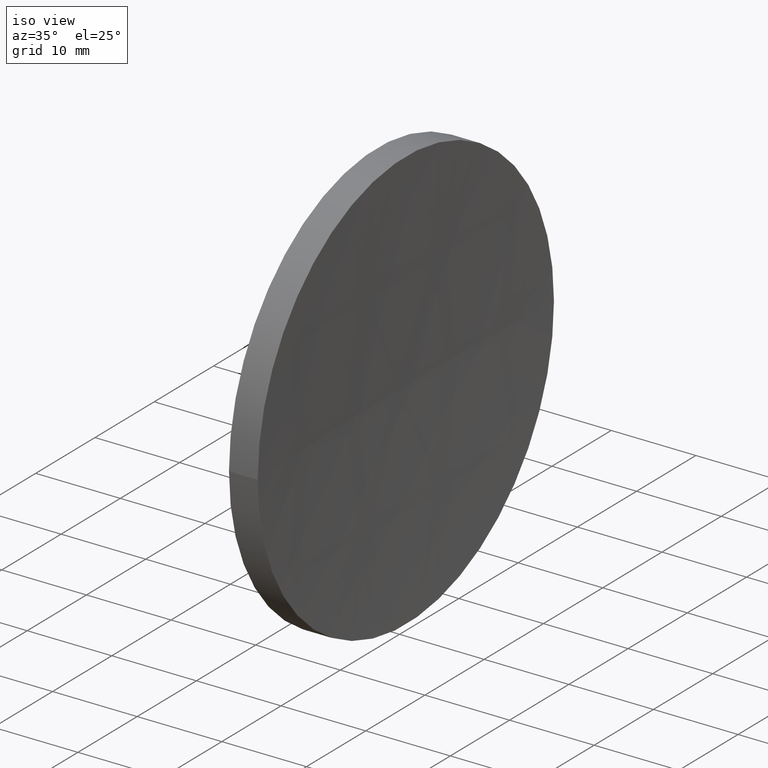
[diagram: clean part render]
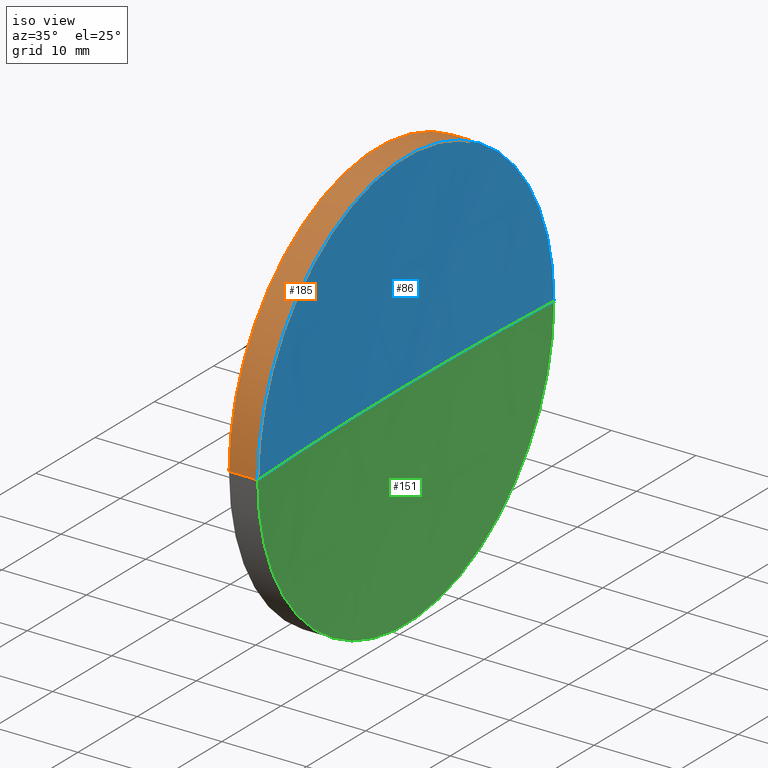
[diagram: same view with three faces highlighted in distinct colors, each labeled with its STEP entity id]
A machine part, iso view with three faces highlighted in distinct colors.
Their STEP definitions:

[orange] entity #185 — the highlighted cylindrical surface (partial cylindrical patch) has radius 25 mm, axis along (-1, -0, -0).
#3 = DIRECTION ( 'NONE',  ( 1.110223024625155600E-015, -1.000000000000000000, 0.0000000000000000000 ) ) ;
#15 = EDGE_CURVE ( 'NONE', #16, #27, #81, .T. ) ;
#16 = VERTEX_POINT ( 'NONE', #102 ) ;
#27 = VERTEX_POINT ( 'NONE', #28 ) ;
#28 = CARTESIAN_POINT ( 'NONE',  ( 247.0464934087960100, 155.4336809418806200, 3.061616997868381100E-015 ) ) ;
#29 = DIRECTION ( 'NONE',  ( 1.110223024625158500E-015, -1.000000000000000000, 0.0000000000000000000 ) ) ;
#45 = EDGE_CURVE ( 'NONE', #135, #79, #116, .T. ) ;
#47 = CARTESIAN_POINT ( 'NONE',  ( 250.4363445055402100, 155.4336809418801400, 0.0000000000000000000 ) ) ;
#51 = LINE ( 'NONE', #61, #98 ) ;
#53 = ORIENTED_EDGE ( 'NONE', *, *, #191, .T. ) ;
#54 = AXIS2_PLACEMENT_3D ( 'NONE', #101, #143, #29 ) ;
#61 = CARTESIAN_POINT ( 'NONE',  ( 231.8889825959263100, 155.4336809418806800, 3.061616997868385800E-015 ) ) ;
#73 = CARTESIAN_POINT ( 'NONE',  ( 250.4363445055402100, 105.4336809418803700, -3.061616997868324700E-015 ) ) ;
#76 = EDGE_CURVE ( 'NONE', #135, #16, #111, .T. ) ;
#77 = DIRECTION ( 'NONE',  ( 0.0000000000000000000, -1.000000000000000000, 0.0000000000000000000 ) ) ;
#79 = VERTEX_POINT ( 'NONE', #47 ) ;
#81 = CIRCLE ( 'NONE', #54, 24.99999999999995400 ) ;
#83 = AXIS2_PLACEMENT_3D ( 'NONE', #158, #110, #3 ) ;
#98 = VECTOR ( 'NONE', #136, 1000.000000000000000 ) ;
#101 = CARTESIAN_POINT ( 'NONE',  ( 247.0464934087960400, 130.4336809418806500, 0.0000000000000000000 ) ) ;
#102 = CARTESIAN_POINT ( 'NONE',  ( 247.0464934087960700, 105.4336809418807000, 0.0000000000000000000 ) ) ;
#105 = ORIENTED_EDGE ( 'NONE', *, *, #45, .T. ) ;
#107 = AXIS2_PLACEMENT_3D ( 'NONE', #137, #163, #77 ) ;
#110 = DIRECTION ( 'NONE',  ( -1.000000000000000000, -6.937607244762875000E-016, -0.0000000000000000000 ) ) ;
#111 = LINE ( 'NONE', #160, #122 ) ;
#116 = CIRCLE ( 'NONE', #107, 25.00000000000006400 ) ;
#119 = DIRECTION ( 'NONE',  ( -1.000000000000000000, -6.937607244762875000E-016, -0.0000000000000000000 ) ) ;
#122 = VECTOR ( 'NONE', #119, 1000.000000000000000 ) ;
#127 = CYLINDRICAL_SURFACE ( 'NONE', #83, 25.00000000000002100 ) ;
#135 = VERTEX_POINT ( 'NONE', #73 ) ;
#136 = DIRECTION ( 'NONE',  ( -1.000000000000000000, -6.937607244762875000E-016, -0.0000000000000000000 ) ) ;
#137 = CARTESIAN_POINT ( 'NONE',  ( 250.4363445055402600, 130.4336809418806500, 0.0000000000000000000 ) ) ;
#142 = ORIENTED_EDGE ( 'NONE', *, *, #15, .F. ) ;
#143 = DIRECTION ( 'NONE',  ( -1.000000000000000000, -6.937607244762875000E-016, -0.0000000000000000000 ) ) ;
#153 = EDGE_LOOP ( 'NONE', ( #105, #53, #142, #188 ) ) ;
#158 = CARTESIAN_POINT ( 'NONE',  ( 231.8889825959263400, 130.4336809418806500, 0.0000000000000000000 ) ) ;
#160 = CARTESIAN_POINT ( 'NONE',  ( 231.8889825959263600, 105.4336809418806200, 0.0000000000000000000 ) ) ;
#163 = DIRECTION ( 'NONE',  ( -1.000000000000000000, -6.937607244762875000E-016, -0.0000000000000000000 ) ) ;
#175 = FACE_OUTER_BOUND ( 'NONE', #153, .T. ) ;
#185 = ADVANCED_FACE ( 'NONE', ( #175 ), #127, .T. ) ;
#188 = ORIENTED_EDGE ( 'NONE', *, *, #76, .F. ) ;
#191 = EDGE_CURVE ( 'NONE', #79, #27, #51, .T. ) ;

[blue] entity #86 — the highlighted spherical surface has radius 478 mm.
#2 = CARTESIAN_POINT ( 'NONE',  ( 727.7821311214902400, 130.4336809418802000, 0.0000000000000000000 ) ) ;
#5 = CARTESIAN_POINT ( 'NONE',  ( 727.7821311214902400, 130.4336809418802000, 0.0000000000000000000 ) ) ;
#7 = CIRCLE ( 'NONE', #33, 478.0000000000001100 ) ;
#18 = EDGE_CURVE ( 'NONE', #79, #170, #30, .T. ) ;
#30 = CIRCLE ( 'NONE', #64, 478.0000000000000000 ) ;
#33 = AXIS2_PLACEMENT_3D ( 'NONE', #5, #93, #87 ) ;
#39 = ORIENTED_EDGE ( 'NONE', *, *, #176, .T. ) ;
#45 = EDGE_CURVE ( 'NONE', #135, #79, #116, .T. ) ;
#47 = CARTESIAN_POINT ( 'NONE',  ( 250.4363445055402100, 155.4336809418801400, 0.0000000000000000000 ) ) ;
#58 = DIRECTION ( 'NONE',  ( 0.0000000000000000000, 0.0000000000000000000, -1.000000000000000000 ) ) ;
#59 = ORIENTED_EDGE ( 'NONE', *, *, #45, .F. ) ;
#64 = AXIS2_PLACEMENT_3D ( 'NONE', #2, #106, #118 ) ;
#73 = CARTESIAN_POINT ( 'NONE',  ( 250.4363445055402100, 105.4336809418803700, -3.061616997868324700E-015 ) ) ;
#75 = DIRECTION ( 'NONE',  ( -6.967926932793868200E-016, 1.000000000000000000, 0.0000000000000000000 ) ) ;
#77 = DIRECTION ( 'NONE',  ( 0.0000000000000000000, -1.000000000000000000, 0.0000000000000000000 ) ) ;
#79 = VERTEX_POINT ( 'NONE', #47 ) ;
#86 = ADVANCED_FACE ( 'NONE', ( #104 ), #155, .F. ) ;
#87 = DIRECTION ( 'NONE',  ( 0.0000000000000000000, 1.000000000000000000, 1.224646799147353000E-016 ) ) ;
#93 = DIRECTION ( 'NONE',  ( -8.496118506040342700E-032, 1.224646799147353200E-016, -1.000000000000000000 ) ) ;
#104 = FACE_OUTER_BOUND ( 'NONE', #156, .T. ) ;
#106 = DIRECTION ( 'NONE',  ( 0.0000000000000000000, -0.0000000000000000000, 1.000000000000000000 ) ) ;
#107 = AXIS2_PLACEMENT_3D ( 'NONE', #137, #163, #77 ) ;
#114 = ORIENTED_EDGE ( 'NONE', *, *, #18, .F. ) ;
#116 = CIRCLE ( 'NONE', #107, 25.00000000000006400 ) ;
#118 = DIRECTION ( 'NONE',  ( 1.000000000000000000, 0.0000000000000000000, 0.0000000000000000000 ) ) ;
#123 = CARTESIAN_POINT ( 'NONE',  ( 249.7821311214901800, 130.4336809418799100, 0.0000000000000000000 ) ) ;
#135 = VERTEX_POINT ( 'NONE', #73 ) ;
#137 = CARTESIAN_POINT ( 'NONE',  ( 250.4363445055402600, 130.4336809418806500, 0.0000000000000000000 ) ) ;
#150 = CARTESIAN_POINT ( 'NONE',  ( 727.7821311214902400, 130.4336809418802000, 0.0000000000000000000 ) ) ;
#155 = SPHERICAL_SURFACE ( 'NONE', #171, 478.0000000000001100 ) ;
#156 = EDGE_LOOP ( 'NONE', ( #59, #39, #114 ) ) ;
#163 = DIRECTION ( 'NONE',  ( -1.000000000000000000, -6.937607244762875000E-016, -0.0000000000000000000 ) ) ;
#170 = VERTEX_POINT ( 'NONE', #123 ) ;
#171 = AXIS2_PLACEMENT_3D ( 'NONE', #150, #58, #75 ) ;
#176 = EDGE_CURVE ( 'NONE', #135, #170, #7, .T. ) ;

[green] entity #151 — the highlighted spherical surface has radius 478 mm.
#2 = CARTESIAN_POINT ( 'NONE',  ( 727.7821311214902400, 130.4336809418802000, 0.0000000000000000000 ) ) ;
#5 = CARTESIAN_POINT ( 'NONE',  ( 727.7821311214902400, 130.4336809418802000, 0.0000000000000000000 ) ) ;
#7 = CIRCLE ( 'NONE', #33, 478.0000000000001100 ) ;
#10 = CIRCLE ( 'NONE', #72, 25.00000000000006400 ) ;
#18 = EDGE_CURVE ( 'NONE', #79, #170, #30, .T. ) ;
#30 = CIRCLE ( 'NONE', #64, 478.0000000000000000 ) ;
#32 = CARTESIAN_POINT ( 'NONE',  ( 250.4363445055402600, 130.4336809418806500, 0.0000000000000000000 ) ) ;
#33 = AXIS2_PLACEMENT_3D ( 'NONE', #5, #93, #87 ) ;
#40 = FACE_OUTER_BOUND ( 'NONE', #99, .T. ) ;
#41 = AXIS2_PLACEMENT_3D ( 'NONE', #181, #148, #46 ) ;
#42 = SPHERICAL_SURFACE ( 'NONE', #41, 478.0000000000001100 ) ;
#43 = EDGE_CURVE ( 'NONE', #79, #135, #10, .T. ) ;
#46 = DIRECTION ( 'NONE',  ( -6.967926932793868200E-016, 1.000000000000000000, 0.0000000000000000000 ) ) ;
#47 = CARTESIAN_POINT ( 'NONE',  ( 250.4363445055402100, 155.4336809418801400, 0.0000000000000000000 ) ) ;
#64 = AXIS2_PLACEMENT_3D ( 'NONE', #2, #106, #118 ) ;
#72 = AXIS2_PLACEMENT_3D ( 'NONE', #32, #133, #131 ) ;
#73 = CARTESIAN_POINT ( 'NONE',  ( 250.4363445055402100, 105.4336809418803700, -3.061616997868324700E-015 ) ) ;
#79 = VERTEX_POINT ( 'NONE', #47 ) ;
#87 = DIRECTION ( 'NONE',  ( 0.0000000000000000000, 1.000000000000000000, 1.224646799147353000E-016 ) ) ;
#93 = DIRECTION ( 'NONE',  ( -8.496118506040342700E-032, 1.224646799147353200E-016, -1.000000000000000000 ) ) ;
#99 = EDGE_LOOP ( 'NONE', ( #130, #172, #112 ) ) ;
#106 = DIRECTION ( 'NONE',  ( 0.0000000000000000000, -0.0000000000000000000, 1.000000000000000000 ) ) ;
#112 = ORIENTED_EDGE ( 'NONE', *, *, #18, .T. ) ;
#118 = DIRECTION ( 'NONE',  ( 1.000000000000000000, 0.0000000000000000000, 0.0000000000000000000 ) ) ;
#123 = CARTESIAN_POINT ( 'NONE',  ( 249.7821311214901800, 130.4336809418799100, 0.0000000000000000000 ) ) ;
#130 = ORIENTED_EDGE ( 'NONE', *, *, #176, .F. ) ;
#131 = DIRECTION ( 'NONE',  ( 0.0000000000000000000, -1.000000000000000000, 0.0000000000000000000 ) ) ;
#133 = DIRECTION ( 'NONE',  ( -1.000000000000000000, -6.937607244762875000E-016, -0.0000000000000000000 ) ) ;
#135 = VERTEX_POINT ( 'NONE', #73 ) ;
#148 = DIRECTION ( 'NONE',  ( 0.0000000000000000000, 0.0000000000000000000, -1.000000000000000000 ) ) ;
#151 = ADVANCED_FACE ( 'NONE', ( #40 ), #42, .F. ) ;
#170 = VERTEX_POINT ( 'NONE', #123 ) ;
#172 = ORIENTED_EDGE ( 'NONE', *, *, #43, .F. ) ;
#176 = EDGE_CURVE ( 'NONE', #135, #170, #7, .T. ) ;
#181 = CARTESIAN_POINT ( 'NONE',  ( 727.7821311214902400, 130.4336809418802000, 0.0000000000000000000 ) ) ;